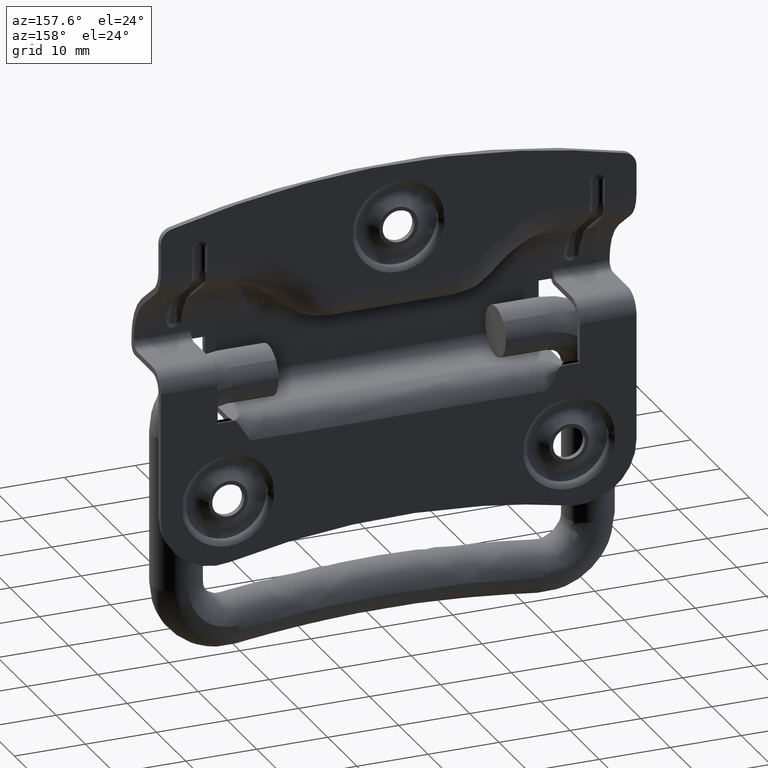
[diagram: clean part render]
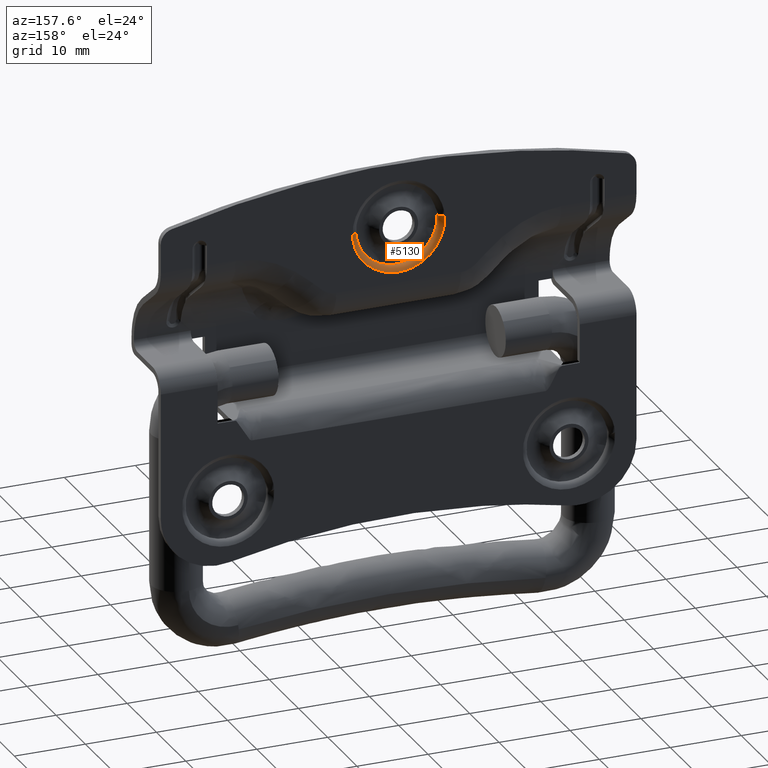
[diagram: same view with one face highlighted and labeled with its STEP entity id]
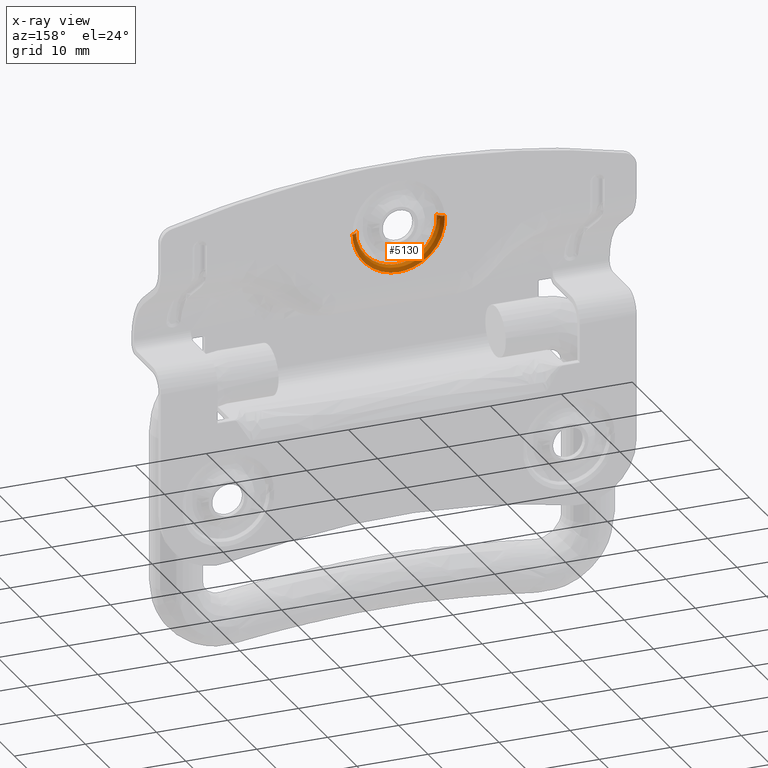
[diagram: x-ray of the same camera — body ghosted, the highlighted face saturated]
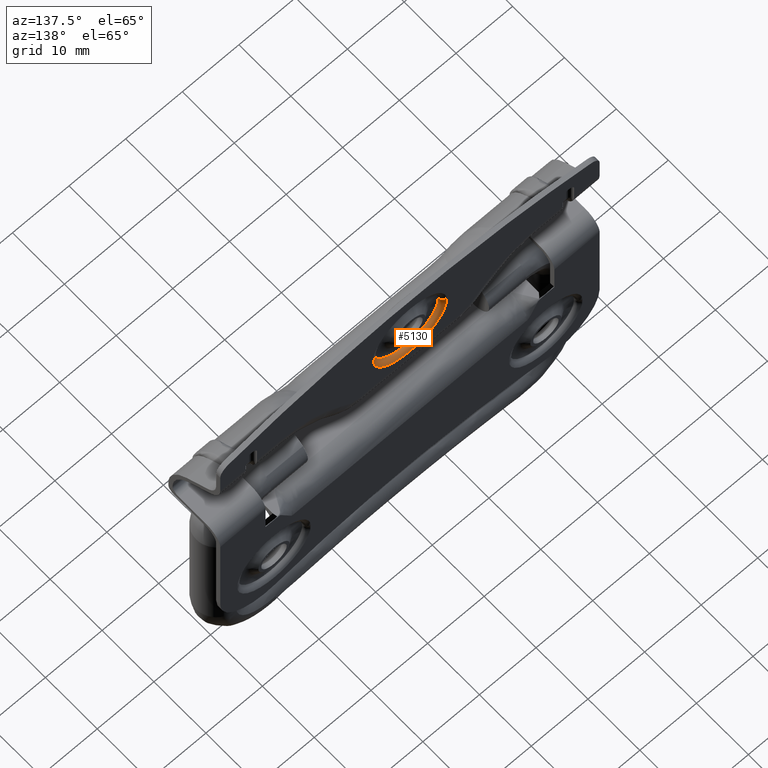
[diagram: same view with one face highlighted and labeled with its STEP entity id]
A machine part, auxiliary view. The second image highlights one B-rep face of the part: STEP entity #5130.
The next image is the same camera in x-ray: the body ghosted, the highlighted face saturated — about 0% of this face is hidden behind the body in this view.
A second angle (auxiliary view) of the same face is appended — the face is thin or edge-on in the first view.
In plain terms, the highlighted face is a freeform B-spline surface patch.
Its self-contained STEP definition (entity closure, byte-faithful):
#4536=CARTESIAN_POINT('',(5.699549951961341,4.900000000046919,19.928373572624771));
#4537=VERTEX_POINT('',#4536);
#4553=CARTESIAN_POINT('',(-1.776357E-014,4.900000000000000,14.300000000000169));
#4554=VERTEX_POINT('',#4553);
#4555=CARTESIAN_POINT('',(-1.776357E-014,4.900000000000000,14.300000000000169));
#4556=CARTESIAN_POINT('',(5.628818000391965,4.900000000000000,14.300000000000169));
#4557=CARTESIAN_POINT('',(5.699549951961341,4.900000000046919,19.928373572624771));
#4565=(BOUNDED_CURVE()B_SPLINE_CURVE(2,(#4555,#4556,#4557),.UNSPECIFIED.,.F.,.U.)B_SPLINE_CURVE_WITH_KNOTS((3,3),(0.0,0.247784295919234),.UNSPECIFIED.)CURVE()GEOMETRIC_REPRESENTATION_ITEM()RATIONAL_B_SPLINE_CURVE((1.0,0.709702639987162,0.994854295638271))REPRESENTATION_ITEM(''));
#4566=EDGE_CURVE('',#4554,#4537,#4565,.T.);
#4568=CARTESIAN_POINT('',(-5.479702401972649,4.899999999939968,18.430649311322941));
#4569=VERTEX_POINT('',#4568);
#4570=CARTESIAN_POINT('',(-5.479702401972649,4.899999999939968,18.430649311322934));
#4571=CARTESIAN_POINT('',(-4.296711636156410,4.900000000000000,14.300000000000173));
#4572=CARTESIAN_POINT('',(-1.776357E-014,4.900000000000000,14.300000000000169));
#4580=(BOUNDED_CURVE()B_SPLINE_CURVE(2,(#4570,#4571,#4572),.UNSPECIFIED.,.F.,.U.)B_SPLINE_CURVE_WITH_KNOTS((3,3),(0.796902877582956,1.0),.UNSPECIFIED.)CURVE()GEOMETRIC_REPRESENTATION_ITEM()RATIONAL_B_SPLINE_CURVE((0.910718278901746,0.762056920334089,1.0))REPRESENTATION_ITEM(''));
#4581=EDGE_CURVE('',#4569,#4554,#4580,.T.);
#4632=CARTESIAN_POINT('',(-5.686124340884889,4.900000000040245,20.397479534061979));
#4633=VERTEX_POINT('',#4632);
#4634=CARTESIAN_POINT('',(-5.686124340884889,4.900000000040245,20.397479534061976));
#4635=CARTESIAN_POINT('',(-5.700000000000149,4.900000000000001,20.198981960568116));
#4636=CARTESIAN_POINT('',(-5.700000000000148,4.900000000000000,20.000000000000298));
#4637=CARTESIAN_POINT('',(-5.700000000000148,4.900000000000000,19.199862518292882));
#4638=CARTESIAN_POINT('',(-5.479702401972649,4.899999999939968,18.430649311322934));
#4646=(BOUNDED_CURVE()B_SPLINE_CURVE(2,(#4634,#4635,#4636,#4637,#4638),.UNSPECIFIED.,.F.,.U.)B_SPLINE_CURVE_WITH_KNOTS((3,2,3),(0.737833686530195,0.750000000000000,0.796902877582956),.UNSPECIFIED.)CURVE()GEOMETRIC_REPRESENTATION_ITEM()RATIONAL_B_SPLINE_CURVE((0.972879876376619,0.985746277146942,1.0,0.945049860852459,0.910718278901746))REPRESENTATION_ITEM(''));
#4647=EDGE_CURVE('',#4633,#4569,#4646,.T.);
#5036=CARTESIAN_POINT('',(-5.688056150169136,4.844370401591682,20.397614258599919));
#5037=CARTESIAN_POINT('',(-5.699435688442582,4.844370401591680,20.234824692425072));
#5038=CARTESIAN_POINT('',(-5.701486300474350,4.844370401591681,20.071650761489373));
#5039=CARTESIAN_POINT('',(-5.773137061963419,4.844370401591682,14.370164461015040));
#5040=CARTESIAN_POINT('',(-0.071650761489089,4.844370401591681,14.298513699525973));
#5041=CARTESIAN_POINT('',(5.629835538985241,4.844370401591682,14.226862938036897));
#5042=CARTESIAN_POINT('',(5.701486300474312,4.844370401591681,19.928349238511231));
#5043=CARTESIAN_POINT('',(-5.624245742011521,5.762029863956686,20.393153696421777));
#5044=CARTESIAN_POINT('',(-5.635497621035007,5.762029863956685,20.232190354951324));
#5045=CARTESIAN_POINT('',(-5.637525228654147,5.762029863956685,20.070846960645149));
#5046=CARTESIAN_POINT('',(-5.708372189299007,5.762029863956686,14.433321731991029));
#5047=CARTESIAN_POINT('',(-0.070846960644878,5.762029863956685,14.362474771346170));
#5048=CARTESIAN_POINT('',(5.566678268009251,5.762029863956686,14.291627810701309));
#5049=CARTESIAN_POINT('',(5.637525228654110,5.762029863956685,19.929153039355434));
#5050=CARTESIAN_POINT('',(-6.539671307481857,5.698063482904503,20.457145022792002));
#5051=CARTESIAN_POINT('',(-6.552754589006254,5.698063482904501,20.269982620212787));
#5052=CARTESIAN_POINT('',(-6.555112218451691,5.698063482904503,20.082378305821937));
#5053=CARTESIAN_POINT('',(-6.637490524273329,5.698063482904502,13.527266087370267));
#5054=CARTESIAN_POINT('',(-0.082378305821659,5.698063482904503,13.444887781548625));
#5055=CARTESIAN_POINT('',(6.472733912630011,5.698063482904502,13.362509475726981));
#5056=CARTESIAN_POINT('',(6.555112218451655,5.698063482904503,19.917621694178663));
#5064=(BOUNDED_SURFACE()B_SPLINE_SURFACE(2,2,((#5036,#5043,#5050),(#5037,#5044,#5051),(#5038,#5045,#5052),(#5039,#5046,#5053),(#5040,#5047,#5054),(#5041,#5048,#5055),(#5042,#5049,#5056)),.UNSPECIFIED.,.F.,.F.,.U.)B_SPLINE_SURFACE_WITH_KNOTS((3,2,2,3),(3,3),(0.0,0.434468510899698,11.296191641938520,22.157914772977339),(0.0,1.457899186488954),.UNSPECIFIED.)GEOMETRIC_REPRESENTATION_ITEM()RATIONAL_B_SPLINE_SURFACE(((0.889999254767073,0.584039754305343,0.889999369092355),(0.899812825292827,0.590479664550233,0.899812940878715),(0.910479748892753,0.597479566409842,0.910479865848865),(0.643806404575090,0.422481853028797,0.643806487275551),(0.910479748892753,0.597479566409842,0.910479865848865),(0.643806404575090,0.422481853028797,0.643806487275551),(0.910479748892753,0.597479566409842,0.910479865848865)))REPRESENTATION_ITEM('')SURFACE());
#5065=ORIENTED_EDGE('',*,*,#4647,.T.);
#5066=ORIENTED_EDGE('',*,*,#4581,.T.);
#5067=ORIENTED_EDGE('',*,*,#4566,.T.);
#5068=CARTESIAN_POINT('',(6.499486549826323,5.699999999999829,19.918320742361011));
#5069=VERTEX_POINT('',#5068);
#5070=CARTESIAN_POINT('',(5.699549951961340,4.900000000046919,19.928373572624771));
#5071=CARTESIAN_POINT('',(5.699549952055665,5.699999525000344,19.928373572664007));
#5072=CARTESIAN_POINT('',(6.499486549826323,5.699999999999829,19.918320742361011));
#5080=(BOUNDED_CURVE()B_SPLINE_CURVE(2,(#5070,#5071,#5072),.UNSPECIFIED.,.F.,.U.)B_SPLINE_CURVE_WITH_KNOTS((3,3),(-1.725134643161526,-0.274865965605523),.UNSPECIFIED.)CURVE()GEOMETRIC_REPRESENTATION_ITEM()RATIONAL_B_SPLINE_CURVE((0.883342149610141,0.624617332773233,0.883341932404765))REPRESENTATION_ITEM(''));
#5081=EDGE_CURVE('',#4537,#5069,#5080,.T.);
#5082=ORIENTED_EDGE('',*,*,#5081,.T.);
#5083=CARTESIAN_POINT('',(-1.776357E-014,5.699999999999901,13.500000000000300));
#5084=VERTEX_POINT('',#5083);
#5085=CARTESIAN_POINT('',(-1.776357E-014,5.699999999999901,13.500000000000300));
#5086=CARTESIAN_POINT('',(6.418827541667756,5.699999999999900,13.500000000000302));
#5087=CARTESIAN_POINT('',(6.499486549826323,5.699999999999829,19.918320742361008));
#5095=(BOUNDED_CURVE()B_SPLINE_CURVE(2,(#5085,#5086,#5087),.UNSPECIFIED.,.F.,.U.)B_SPLINE_CURVE_WITH_KNOTS((3,3),(0.0,0.247784295846942),.UNSPECIFIED.)CURVE()GEOMETRIC_REPRESENTATION_ITEM()RATIONAL_B_SPLINE_CURVE((1.0,0.709702640071857,0.994854295471884))REPRESENTATION_ITEM(''));
#5096=EDGE_CURVE('',#5084,#5069,#5095,.T.);
#5097=ORIENTED_EDGE('',*,*,#5096,.F.);
#5098=CARTESIAN_POINT('',(-6.484176642991216,5.699999999999828,20.453266119145610));
#5099=VERTEX_POINT('',#5098);
#5100=CARTESIAN_POINT('',(-6.484176642991216,5.699999999999828,20.453266119145606));
#5101=CARTESIAN_POINT('',(-6.500000000000016,5.699999999999900,20.226909253655414));
#5102=CARTESIAN_POINT('',(-6.500000000000017,5.699999999999901,20.000000000000298));
#5103=CARTESIAN_POINT('',(-6.500000000000017,5.699999999999900,13.500000000000302));
#5104=CARTESIAN_POINT('',(-1.776357E-014,5.699999999999901,13.500000000000300));
#5112=(BOUNDED_CURVE()B_SPLINE_CURVE(2,(#5100,#5101,#5102,#5103,#5104),.UNSPECIFIED.,.F.,.U.)B_SPLINE_CURVE_WITH_KNOTS((3,2,3),(0.737833686510320,0.750000000000000,1.0),.UNSPECIFIED.)CURVE()GEOMETRIC_REPRESENTATION_ITEM()RATIONAL_B_SPLINE_CURVE((0.972879876334583,0.985746277123657,1.0,0.707106781186547,1.0))REPRESENTATION_ITEM(''));
#5113=EDGE_CURVE('',#5099,#5084,#5112,.T.);
#5114=ORIENTED_EDGE('',*,*,#5113,.F.);
#5115=CARTESIAN_POINT('',(-5.686124340884889,4.900000000040246,20.397479534061979));
#5116=CARTESIAN_POINT('',(-5.686124340970876,5.699999524965826,20.397479533985944));
#5117=CARTESIAN_POINT('',(-6.484176642991215,5.699999999999828,20.453266119145610));
#5125=(BOUNDED_CURVE()B_SPLINE_CURVE(2,(#5115,#5116,#5117),.UNSPECIFIED.,.F.,.U.)B_SPLINE_CURVE_WITH_KNOTS((3,3),(-1.725134643178636,-0.274865965649767),.UNSPECIFIED.)CURVE()GEOMETRIC_REPRESENTATION_ITEM()RATIONAL_B_SPLINE_CURVE((0.863472075336717,0.610567066067747,0.863471862995803))REPRESENTATION_ITEM(''));
#5126=EDGE_CURVE('',#4633,#5099,#5125,.T.);
#5127=ORIENTED_EDGE('',*,*,#5126,.F.);
#5128=EDGE_LOOP('',(#5065,#5066,#5067,#5082,#5097,#5114,#5127));
#5129=FACE_OUTER_BOUND('',#5128,.T.);
#5130=ADVANCED_FACE('',(#5129),#5064,.T.);